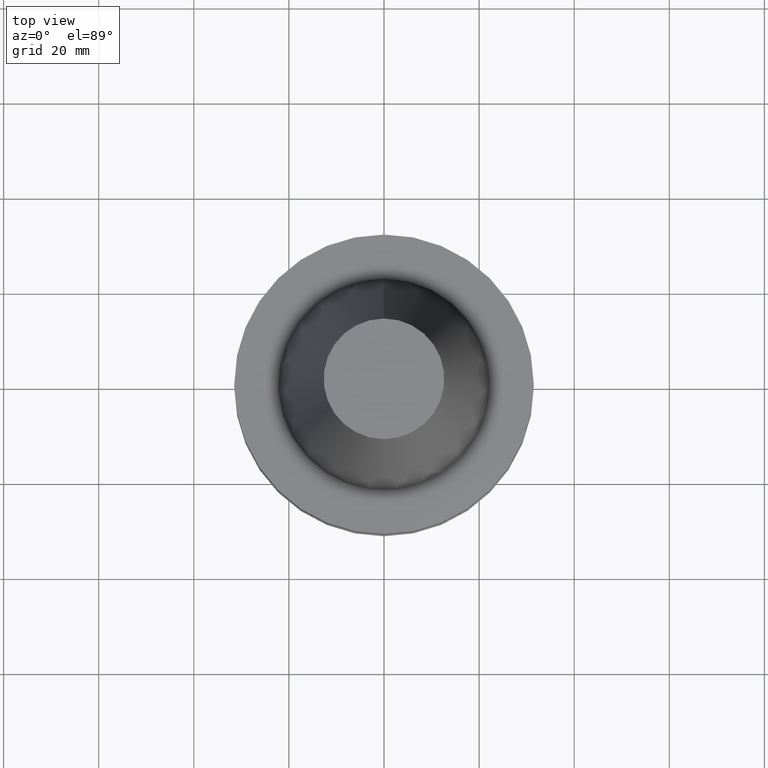
[diagram: clean part render]
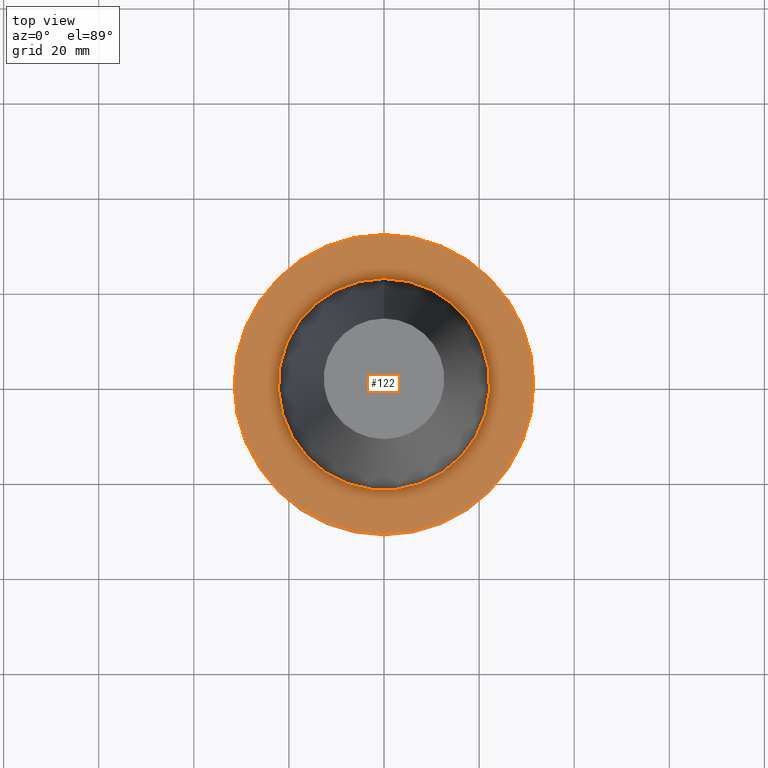
[diagram: same view with one face highlighted and labeled with its STEP entity id]
A machine part, top view. The second image highlights one B-rep face of the part: STEP entity #122.
In plain terms, the highlighted planar face has unit normal (-0, -0, 1).
Its self-contained STEP definition (entity closure, byte-faithful):
#102=EDGE_CURVE('Unnamed[1]',#242,#242,#243,.T.);
#122=ADVANCED_FACE('Unnamed[1]',(#272,#273),#274,.T.);
#147=EDGE_CURVE('Unnamed[1]',#311,#311,#312,.T.);
#242=VERTEX_POINT('',#427);
#243=CIRCLE('',#428,22.225);
#272=FACE_OUTER_BOUND('',#465,.T.);
#273=FACE_BOUND('',#466,.T.);
#274=PLANE('',#467);
#311=VERTEX_POINT('',#514);
#312=CIRCLE('',#515,31.4999999999996);
#427=CARTESIAN_POINT('',(6.12323399573622E-017,22.2250000000001,-0.999999999999912));
#428=AXIS2_PLACEMENT_3D('',#625,#626,#627);
#465=EDGE_LOOP('',(#658));
#466=EDGE_LOOP('',(#659));
#467=AXIS2_PLACEMENT_3D('',#660,#661,#662);
#514=CARTESIAN_POINT('',(6.12323399573568E-017,31.4999999999997,-0.999999999999825));
#515=AXIS2_PLACEMENT_3D('',#703,#704,#705);
#625=CARTESIAN_POINT('',(6.12323399573616E-017,4.09926346953707E-014,-0.999999999999901));
#626=DIRECTION('',(6.12323399573677E-017,-5.36731610657161E-016,-1.0));
#627=DIRECTION('',(2.80381797188567E-032,1.0,-5.36731610657162E-016));
#658=ORIENTED_EDGE('',*,*,#147,.F.);
#659=ORIENTED_EDGE('',*,*,#102,.T.);
#660=CARTESIAN_POINT('',(6.12323399573595E-017,26.8624999999999,-0.999999999999869));
#661=DIRECTION('',(-6.12323399573677E-017,-9.35138060429241E-015,1.0));
#662=DIRECTION('',(5.77434068963536E-031,-1.0,-9.35138060429241E-015));
#703=CARTESIAN_POINT('',(6.12323399573559E-017,4.09926346953707E-014,-0.999999999999808));
#704=DIRECTION('',(6.12323399573677E-017,-5.36731610657144E-016,-1.0));
#705=DIRECTION('',(2.80381797188567E-032,1.0,-5.36731610657144E-016));